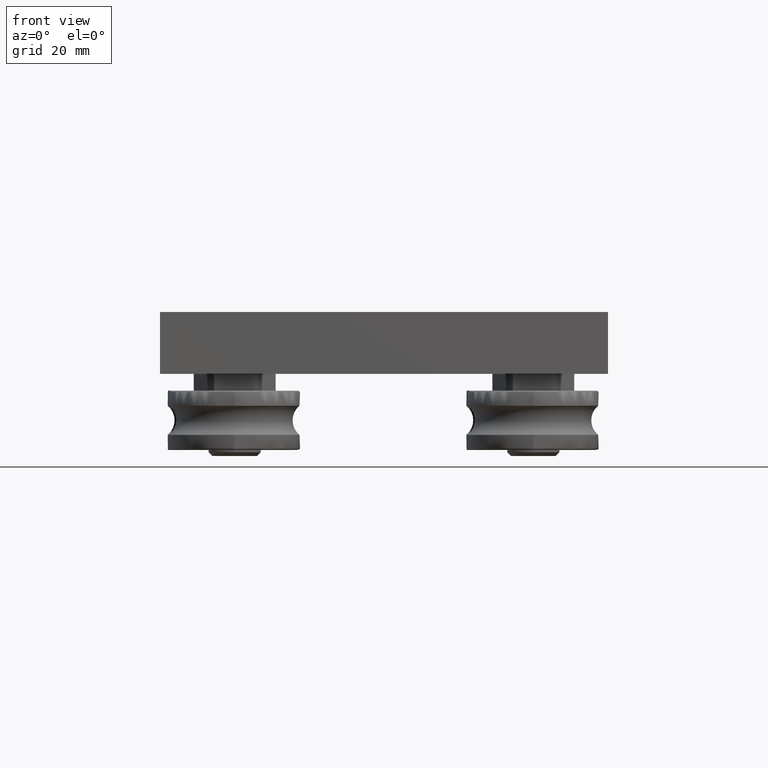
[diagram: clean part render]
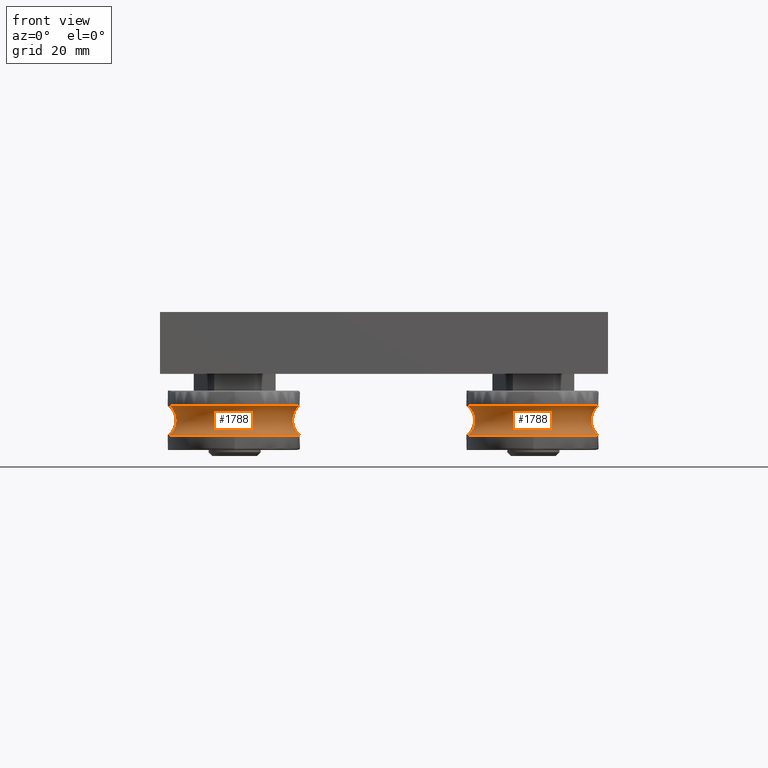
[diagram: same view with one multi-face feature highlighted, each face labeled with its STEP entity id]
A machine part, front view. The highlighted faces form ONE feature: a constant-radius fillet chain: 2 tangent blend faces with common blend radius 5.025 mm. The faces share edges in the B-rep.
Their STEP definitions:
[1] entity #1788 (Torus):
#106=TOROIDAL_SURFACE('',#2093,20.6499999999868,5.025);
#326=FACE_OUTER_BOUND('',#474,.T.);
#474=EDGE_LOOP('',(#1507,#1508,#1509,#1510,#1511,#1512,#1513,#1514));
#788=CIRCLE('',#2094,17.4999999999996);
#789=CIRCLE('',#2095,17.5);
#790=CIRCLE('',#2096,5.025);
#791=CIRCLE('',#2097,17.5);
#792=CIRCLE('',#2098,17.5);
#793=CIRCLE('',#2099,17.5);
#794=CIRCLE('',#2100,17.5);
#929=VERTEX_POINT('',#3128);
#930=VERTEX_POINT('',#3129);
#931=VERTEX_POINT('',#3131);
#932=VERTEX_POINT('',#3133);
#933=VERTEX_POINT('',#3135);
#934=VERTEX_POINT('',#3137);
#1128=EDGE_CURVE('',#929,#930,#788,.F.);
#1129=EDGE_CURVE('',#930,#931,#789,.F.);
#1130=EDGE_CURVE('',#931,#932,#790,.T.);
#1131=EDGE_CURVE('',#932,#933,#791,.T.);
#1132=EDGE_CURVE('',#933,#934,#792,.T.);
#1133=EDGE_CURVE('',#934,#932,#793,.T.);
#1134=EDGE_CURVE('',#931,#929,#794,.F.);
#1507=ORIENTED_EDGE('',*,*,#1128,.T.);
#1508=ORIENTED_EDGE('',*,*,#1129,.T.);
#1509=ORIENTED_EDGE('',*,*,#1130,.T.);
#1510=ORIENTED_EDGE('',*,*,#1131,.T.);
#1511=ORIENTED_EDGE('',*,*,#1132,.T.);
#1512=ORIENTED_EDGE('',*,*,#1133,.T.);
#1513=ORIENTED_EDGE('',*,*,#1130,.F.);
#1514=ORIENTED_EDGE('',*,*,#1134,.T.);
#1788=ADVANCED_FACE('',(#326),#106,.F.);
#2093=AXIS2_PLACEMENT_3D('',#3127,#2561,#2562);
#2094=AXIS2_PLACEMENT_3D('',#3130,#2563,#2564);
#2095=AXIS2_PLACEMENT_3D('',#3132,#2565,#2566);
#2096=AXIS2_PLACEMENT_3D('',#3134,#2567,#2568);
#2097=AXIS2_PLACEMENT_3D('',#3136,#2569,#2570);
#2098=AXIS2_PLACEMENT_3D('',#3138,#2571,#2572);
#2099=AXIS2_PLACEMENT_3D('',#3139,#2573,#2574);
#2100=AXIS2_PLACEMENT_3D('',#3140,#2575,#2576);
#2561=DIRECTION('center_axis',(0.,0.,-1.));
#2562=DIRECTION('ref_axis',(-1.,0.,0.));
#2563=DIRECTION('center_axis',(1.98389456597708E-15,0.,-1.));
#2564=DIRECTION('ref_axis',(-1.,0.,-1.98389456597708E-15));
#2565=DIRECTION('center_axis',(-1.98389456597707E-15,0.,-1.));
#2566=DIRECTION('ref_axis',(-1.,0.,1.98389456597707E-15));
#2567=DIRECTION('center_axis',(1.22464679914735E-16,1.,0.));
#2568=DIRECTION('ref_axis',(1.,-1.22464679914735E-16,0.));
#2569=DIRECTION('center_axis',(8.70120689653672E-16,0.,-1.));
#2570=DIRECTION('ref_axis',(-1.,0.,-8.70120689653672E-16));
#2571=DIRECTION('center_axis',(0.,0.,-1.));
#2572=DIRECTION('ref_axis',(-1.,0.,0.));
#2573=DIRECTION('center_axis',(8.70120689653672E-16,0.,-1.));
#2574=DIRECTION('ref_axis',(-1.,0.,-8.70120689653672E-16));
#2575=DIRECTION('center_axis',(-1.98389456597707E-15,0.,-1.));
#2576=DIRECTION('ref_axis',(-1.,0.,1.98389456597707E-15));
#3127=CARTESIAN_POINT('Origin',(0.,0.,-22.3500000001203));
#3128=CARTESIAN_POINT('',(1.03181352351101E-11,17.500000000012,-26.2651149409818));
#3129=CARTESIAN_POINT('',(1.14352971536391E-11,-17.4999999999877,-26.2651149409818));
#3130=CARTESIAN_POINT('Origin',(1.10942254597084E-11,1.2115308756222E-11,
-26.2651149409632));
#3131=CARTESIAN_POINT('',(17.5000000000119,-2.14313189850989E-15,-26.2651149409818));
#3132=CARTESIAN_POINT('Origin',(1.18873911500323E-11,1.2115308756222E-11,
-26.2651149409818));
#3133=CARTESIAN_POINT('',(17.5000000000119,-2.14313189850787E-15,-18.4348850592588));
#3134=CARTESIAN_POINT('Origin',(20.6499999999868,-2.52889564023767E-15,
-22.3500000001203));
#3135=CARTESIAN_POINT('',(-1.07153055959535E-15,-17.4999999999997,-18.4348850592588));
#3136=CARTESIAN_POINT('Origin',(1.18828972004595E-11,1.21291865440298E-11,
-18.4348850592588));
#3137=CARTESIAN_POINT('',(1.14352971536391E-11,17.5000000000119,-18.4348850592588));
#3138=CARTESIAN_POINT('Origin',(1.14352971536391E-11,1.21291865440298E-11,
-18.4348850592774));
#3139=CARTESIAN_POINT('Origin',(1.18828972004595E-11,1.21291865440298E-11,
-18.4348850592588));
#3140=CARTESIAN_POINT('Origin',(1.18873911500323E-11,1.2115308756222E-11,
-26.2651149409818));
[2] entity #1788 (Torus):
#106=TOROIDAL_SURFACE('',#2093,20.6499999999868,5.025);
#326=FACE_OUTER_BOUND('',#474,.T.);
#474=EDGE_LOOP('',(#1507,#1508,#1509,#1510,#1511,#1512,#1513,#1514));
#788=CIRCLE('',#2094,17.4999999999996);
#789=CIRCLE('',#2095,17.5);
#790=CIRCLE('',#2096,5.025);
#791=CIRCLE('',#2097,17.5);
#792=CIRCLE('',#2098,17.5);
#793=CIRCLE('',#2099,17.5);
#794=CIRCLE('',#2100,17.5);
#929=VERTEX_POINT('',#3128);
#930=VERTEX_POINT('',#3129);
#931=VERTEX_POINT('',#3131);
#932=VERTEX_POINT('',#3133);
#933=VERTEX_POINT('',#3135);
#934=VERTEX_POINT('',#3137);
#1128=EDGE_CURVE('',#929,#930,#788,.F.);
#1129=EDGE_CURVE('',#930,#931,#789,.F.);
#1130=EDGE_CURVE('',#931,#932,#790,.T.);
#1131=EDGE_CURVE('',#932,#933,#791,.T.);
#1132=EDGE_CURVE('',#933,#934,#792,.T.);
#1133=EDGE_CURVE('',#934,#932,#793,.T.);
#1134=EDGE_CURVE('',#931,#929,#794,.F.);
#1507=ORIENTED_EDGE('',*,*,#1128,.T.);
#1508=ORIENTED_EDGE('',*,*,#1129,.T.);
#1509=ORIENTED_EDGE('',*,*,#1130,.T.);
#1510=ORIENTED_EDGE('',*,*,#1131,.T.);
#1511=ORIENTED_EDGE('',*,*,#1132,.T.);
#1512=ORIENTED_EDGE('',*,*,#1133,.T.);
#1513=ORIENTED_EDGE('',*,*,#1130,.F.);
#1514=ORIENTED_EDGE('',*,*,#1134,.T.);
#1788=ADVANCED_FACE('',(#326),#106,.F.);
#2093=AXIS2_PLACEMENT_3D('',#3127,#2561,#2562);
#2094=AXIS2_PLACEMENT_3D('',#3130,#2563,#2564);
#2095=AXIS2_PLACEMENT_3D('',#3132,#2565,#2566);
#2096=AXIS2_PLACEMENT_3D('',#3134,#2567,#2568);
#2097=AXIS2_PLACEMENT_3D('',#3136,#2569,#2570);
#2098=AXIS2_PLACEMENT_3D('',#3138,#2571,#2572);
#2099=AXIS2_PLACEMENT_3D('',#3139,#2573,#2574);
#2100=AXIS2_PLACEMENT_3D('',#3140,#2575,#2576);
#2561=DIRECTION('center_axis',(0.,0.,-1.));
#2562=DIRECTION('ref_axis',(-1.,0.,0.));
#2563=DIRECTION('center_axis',(1.98389456597708E-15,0.,-1.));
#2564=DIRECTION('ref_axis',(-1.,0.,-1.98389456597708E-15));
#2565=DIRECTION('center_axis',(-1.98389456597707E-15,0.,-1.));
#2566=DIRECTION('ref_axis',(-1.,0.,1.98389456597707E-15));
#2567=DIRECTION('center_axis',(1.22464679914735E-16,1.,0.));
#2568=DIRECTION('ref_axis',(1.,-1.22464679914735E-16,0.));
#2569=DIRECTION('center_axis',(8.70120689653672E-16,0.,-1.));
#2570=DIRECTION('ref_axis',(-1.,0.,-8.70120689653672E-16));
#2571=DIRECTION('center_axis',(0.,0.,-1.));
#2572=DIRECTION('ref_axis',(-1.,0.,0.));
#2573=DIRECTION('center_axis',(8.70120689653672E-16,0.,-1.));
#2574=DIRECTION('ref_axis',(-1.,0.,-8.70120689653672E-16));
#2575=DIRECTION('center_axis',(-1.98389456597707E-15,0.,-1.));
#2576=DIRECTION('ref_axis',(-1.,0.,1.98389456597707E-15));
#3127=CARTESIAN_POINT('Origin',(0.,0.,-22.3500000001203));
#3128=CARTESIAN_POINT('',(1.03181352351101E-11,17.500000000012,-26.2651149409818));
#3129=CARTESIAN_POINT('',(1.14352971536391E-11,-17.4999999999877,-26.2651149409818));
#3130=CARTESIAN_POINT('Origin',(1.10942254597084E-11,1.2115308756222E-11,
-26.2651149409632));
#3131=CARTESIAN_POINT('',(17.5000000000119,-2.14313189850989E-15,-26.2651149409818));
#3132=CARTESIAN_POINT('Origin',(1.18873911500323E-11,1.2115308756222E-11,
-26.2651149409818));
#3133=CARTESIAN_POINT('',(17.5000000000119,-2.14313189850787E-15,-18.4348850592588));
#3134=CARTESIAN_POINT('Origin',(20.6499999999868,-2.52889564023767E-15,
-22.3500000001203));
#3135=CARTESIAN_POINT('',(-1.07153055959535E-15,-17.4999999999997,-18.4348850592588));
#3136=CARTESIAN_POINT('Origin',(1.18828972004595E-11,1.21291865440298E-11,
-18.4348850592588));
#3137=CARTESIAN_POINT('',(1.14352971536391E-11,17.5000000000119,-18.4348850592588));
#3138=CARTESIAN_POINT('Origin',(1.14352971536391E-11,1.21291865440298E-11,
-18.4348850592774));
#3139=CARTESIAN_POINT('Origin',(1.18828972004595E-11,1.21291865440298E-11,
-18.4348850592588));
#3140=CARTESIAN_POINT('Origin',(1.18873911500323E-11,1.2115308756222E-11,
-26.2651149409818));